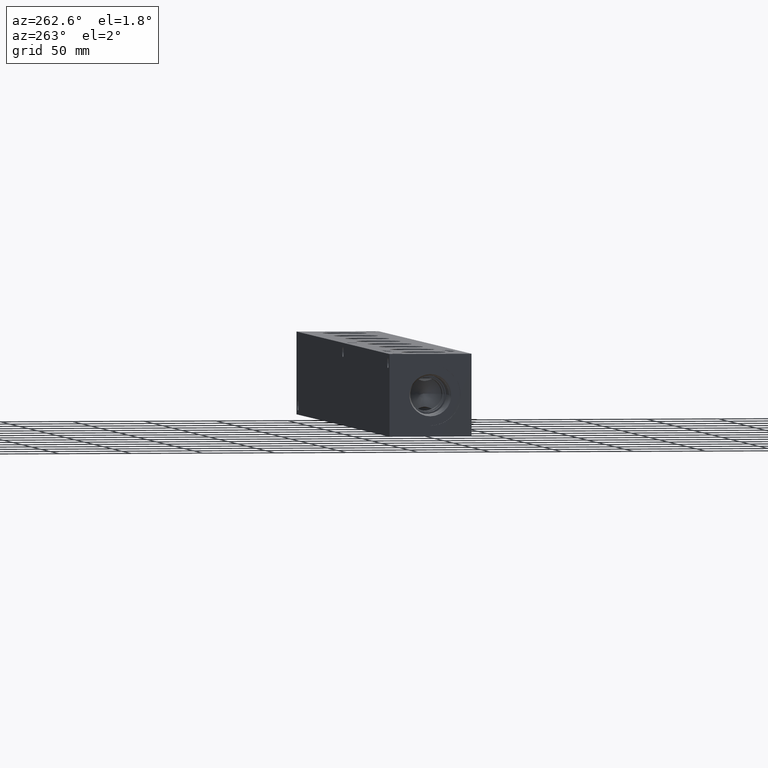
[diagram: clean part render]
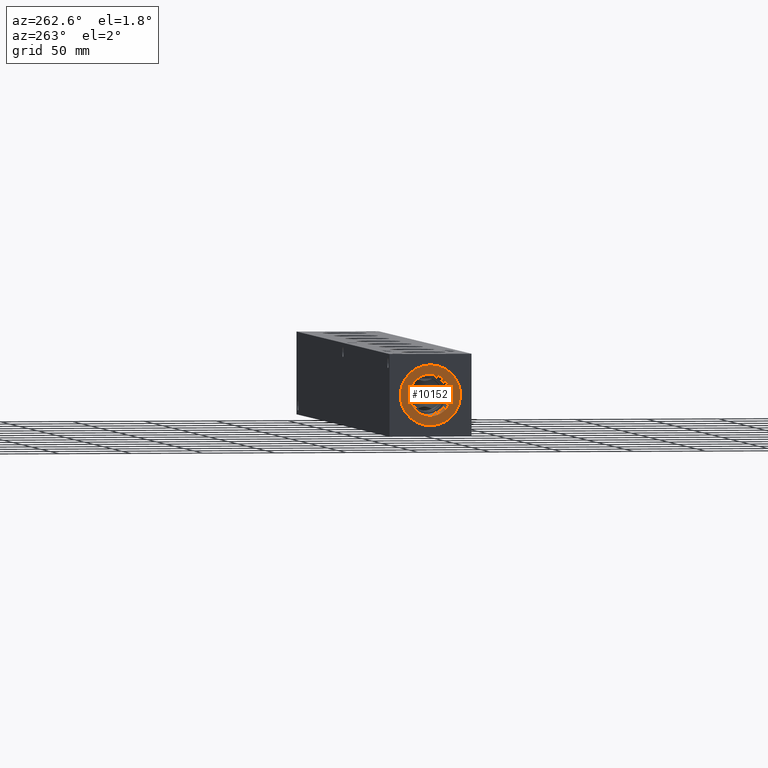
[diagram: same view with one face highlighted and labeled with its STEP entity id]
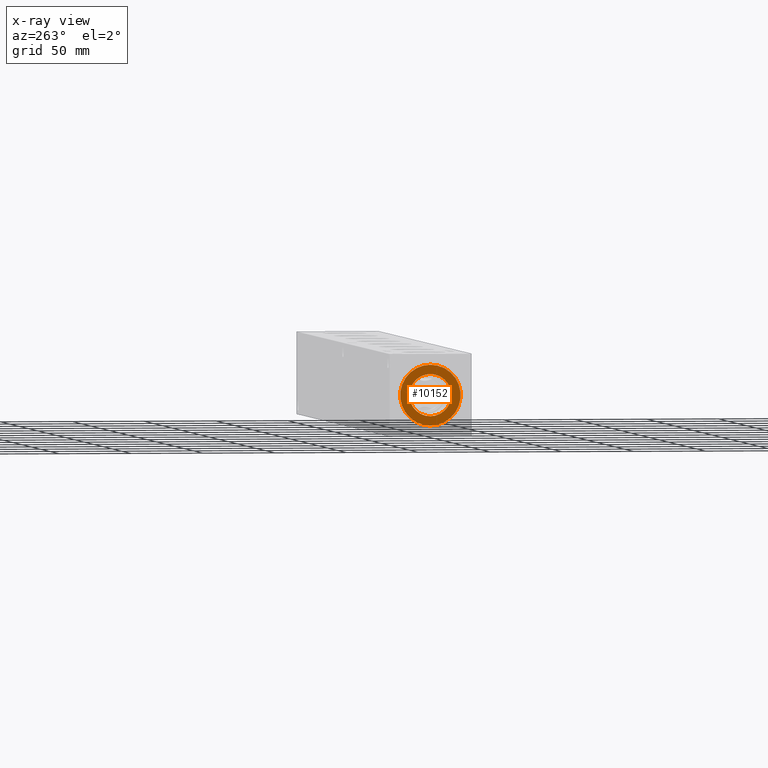
[diagram: x-ray of the same camera — body ghosted, the highlighted face saturated]
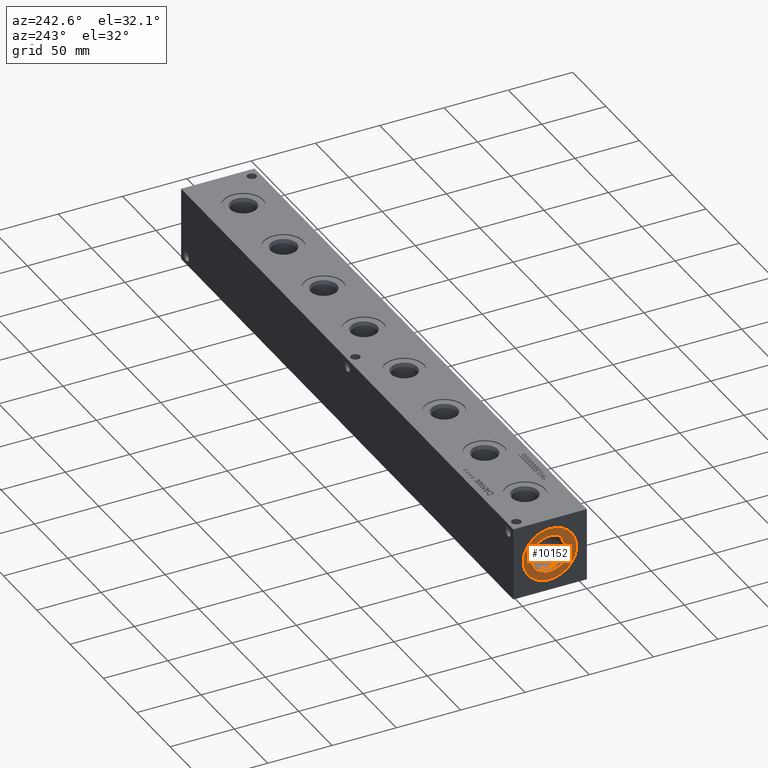
[diagram: same view with one face highlighted and labeled with its STEP entity id]
A machine part, auxiliary view. The second image highlights one B-rep face of the part: STEP entity #10152.
The next image is the same camera in x-ray: the body ghosted, the highlighted face saturated — about 0% of this face is hidden behind the body in this view.
A second angle (auxiliary view) of the same face is appended — the face is thin or edge-on in the first view.
In plain terms, the highlighted planar face has unit normal (1, 0, 0).
Its self-contained STEP definition (entity closure, byte-faithful):
#534=CIRCLE('',#10932,21.0185);
#535=CIRCLE('',#10933,21.0185);
#536=CIRCLE('',#10935,14.5923);
#537=CIRCLE('',#10936,14.5923);
#619=FACE_BOUND('',#2013,.T.);
#878=PLANE('',#10934);
#1405=FACE_OUTER_BOUND('',#2012,.T.);
#2012=EDGE_LOOP('',(#9126,#9127));
#2013=EDGE_LOOP('',(#9128,#9129));
#4892=VERTEX_POINT('',#17863);
#4893=VERTEX_POINT('',#17865);
#4894=VERTEX_POINT('',#17869);
#4895=VERTEX_POINT('',#17870);
#6318=EDGE_CURVE('',#4892,#4893,#534,.T.);
#6319=EDGE_CURVE('',#4893,#4892,#535,.T.);
#6320=EDGE_CURVE('',#4894,#4895,#536,.T.);
#6321=EDGE_CURVE('',#4895,#4894,#537,.T.);
#9126=ORIENTED_EDGE('',*,*,#6319,.F.);
#9127=ORIENTED_EDGE('',*,*,#6318,.F.);
#9128=ORIENTED_EDGE('',*,*,#6320,.T.);
#9129=ORIENTED_EDGE('',*,*,#6321,.T.);
#10152=ADVANCED_FACE('',(#1405,#619),#878,.F.);
#10932=AXIS2_PLACEMENT_3D('',#17866,#13268,#13269);
#10933=AXIS2_PLACEMENT_3D('',#17867,#13270,#13271);
#10934=AXIS2_PLACEMENT_3D('',#17868,#13272,#13273);
#10935=AXIS2_PLACEMENT_3D('',#17871,#13274,#13275);
#10936=AXIS2_PLACEMENT_3D('',#17872,#13276,#13277);
#13268=DIRECTION('center_axis',(1.,0.,0.));
#13269=DIRECTION('ref_axis',(0.,0.,-1.));
#13270=DIRECTION('center_axis',(1.,0.,0.));
#13271=DIRECTION('ref_axis',(0.,0.,-1.));
#13272=DIRECTION('center_axis',(1.,0.,0.));
#13273=DIRECTION('ref_axis',(0.,0.,-1.));
#13274=DIRECTION('center_axis',(1.,0.,0.));
#13275=DIRECTION('ref_axis',(0.,0.,-1.));
#13276=DIRECTION('center_axis',(1.,0.,0.));
#13277=DIRECTION('ref_axis',(0.,0.,-1.));
#17863=CARTESIAN_POINT('',(0.7874,28.575,7.55649999999999));
#17865=CARTESIAN_POINT('',(0.7874,28.575,49.5935));
#17866=CARTESIAN_POINT('Origin',(0.7874,28.575,28.575));
#17867=CARTESIAN_POINT('Origin',(0.7874,28.575,28.575));
#17868=CARTESIAN_POINT('Origin',(0.7874,28.575,43.1673));
#17869=CARTESIAN_POINT('',(0.7874,28.575,43.1673));
#17870=CARTESIAN_POINT('',(0.787399999999999,28.575,13.9827));
#17871=CARTESIAN_POINT('Origin',(0.7874,28.575,28.575));
#17872=CARTESIAN_POINT('Origin',(0.7874,28.575,28.575));